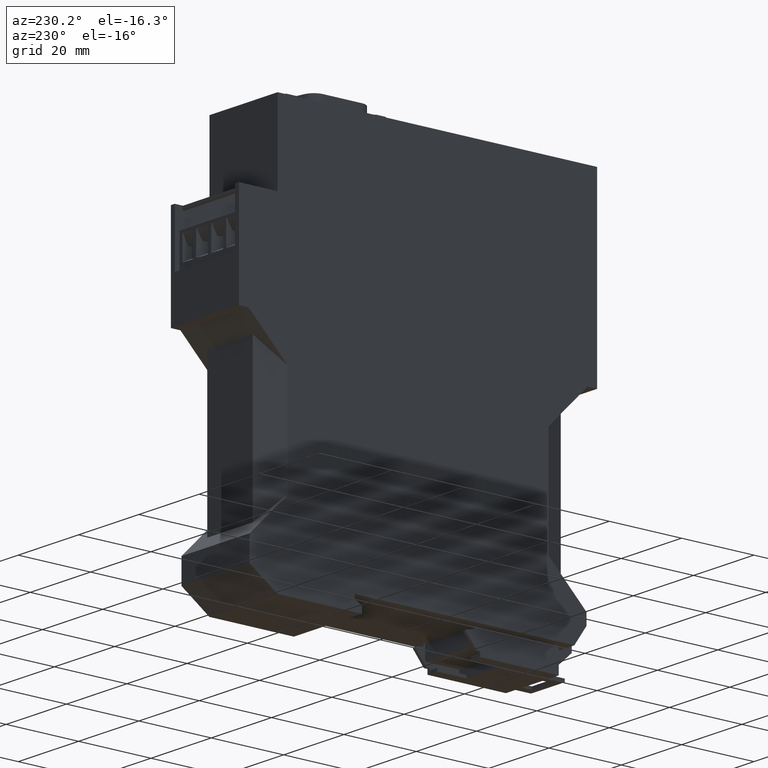
[diagram: clean part render]
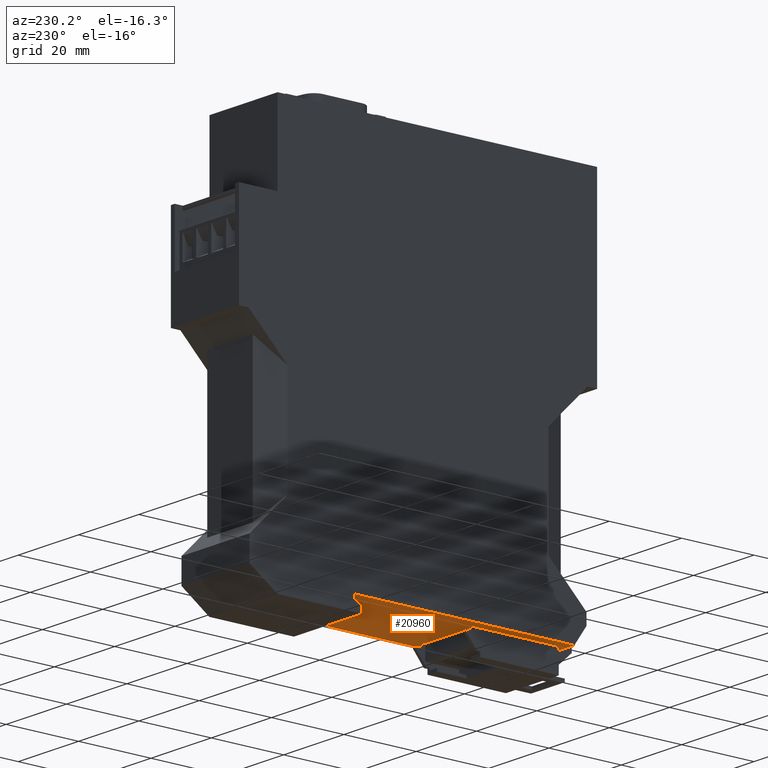
[diagram: same view with one face highlighted and labeled with its STEP entity id]
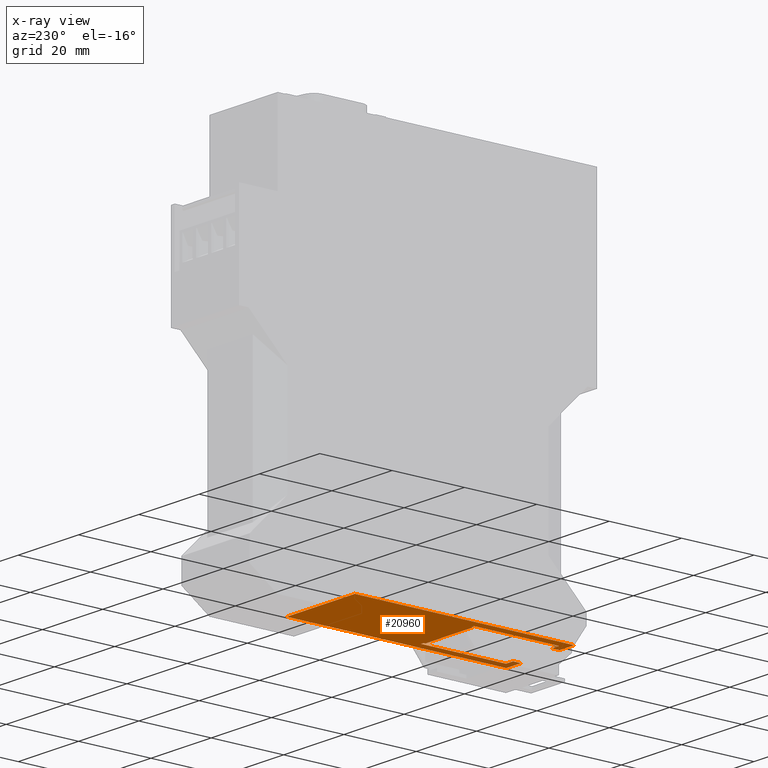
[diagram: x-ray of the same camera — body ghosted, the highlighted face saturated]
A machine part, auxiliary view. The second image highlights one B-rep face of the part: STEP entity #20960.
The next image is the same camera in x-ray: the body ghosted, the highlighted face saturated — about 3% of this face is hidden behind the body in this view.
In plain terms, the highlighted planar face has unit normal (0, 0, 1).
Its self-contained STEP definition (entity closure, byte-faithful):
#60=CARTESIAN_POINT('',(24.,-7.14095449438901E-13,0.));
#70=DIRECTION('',(1.,-1.44E-14,-0.));
#80=VECTOR('',#70,1.);
#90=LINE('',#60,#80);
#100=CARTESIAN_POINT('',(-60.7000000000028,5.04485342389671E-13,0.));
#110=VERTEX_POINT('',#100);
#120=CARTESIAN_POINT('',(-1.76925141204265E-12,-3.69482222595252E-13,0.)
);
#130=VERTEX_POINT('',#120);
#140=EDGE_CURVE('',#110,#130,#90,.T.);
#2010=CARTESIAN_POINT('',(-60.7000000000009,5.04485342389671E-13,22.6));
#2020=VERTEX_POINT('',#2010);
#3630=CARTESIAN_POINT('',(-1.76925141204265E-12,-3.69482222595252E-13,
22.6));
#3640=VERTEX_POINT('',#3630);
#3670=CARTESIAN_POINT('',(24.,-7.14095449438901E-13,22.6));
#3680=DIRECTION('',(1.,-1.44E-14,-0.));
#3690=VECTOR('',#3680,1.);
#3700=LINE('',#3670,#3690);
#3710=EDGE_CURVE('',#2020,#3640,#3700,.T.);
#5530=CARTESIAN_POINT('',(-60.7000000000028,5.04485342389671E-13,4.9));
#5540=VERTEX_POINT('',#5530);
#5570=CARTESIAN_POINT('',(-60.7000000000028,5.04485342389671E-13,0.));
#5580=DIRECTION('',(0.,0.,1.));
#5590=VECTOR('',#5580,1.);
#5600=LINE('',#5570,#5590);
#5610=EDGE_CURVE('',#110,#5540,#5600,.T.);
#6250=CARTESIAN_POINT('',(24.,-7.14095449438901E-13,4.9));
#6260=DIRECTION('',(1.,-1.44E-14,-0.));
#6270=VECTOR('',#6260,1.);
#6280=LINE('',#6250,#6270);
#6290=CARTESIAN_POINT('',(-58.5000000000017,8.59756710269721E-13,4.9));
#6300=VERTEX_POINT('',#6290);
#6310=EDGE_CURVE('',#5540,#6300,#6280,.T.);
#9330=CARTESIAN_POINT('',(-58.5000000000017,4.72510919280467E-13,0.));
#9340=DIRECTION('',(0.,0.,-1.));
#9350=VECTOR('',#9340,1.);
#9360=LINE('',#9330,#9350);
#9370=CARTESIAN_POINT('',(-58.5000000000017,4.72510919280467E-13,
2.54999999999998));
#9380=VERTEX_POINT('',#9370);
#9390=EDGE_CURVE('',#6300,#9380,#9360,.T.);
#10770=CARTESIAN_POINT('',(-35.5000000000031,8.59756710269721E-13,
3.34999999999999));
#10780=VERTEX_POINT('',#10770);
#10810=CARTESIAN_POINT('',(24.,-7.14095449438901E-13,3.34999999999999));
#10820=DIRECTION('',(-1.,1.44E-14,0.));
#10830=VECTOR('',#10820,1.);
#10840=LINE('',#10810,#10830);
#10850=CARTESIAN_POINT('',(-35.0000000000018,1.35003119794419E-13,
3.34999999999999));
#10860=VERTEX_POINT('',#10850);
#10870=EDGE_CURVE('',#10860,#10780,#10840,.T.);
#11270=CARTESIAN_POINT('',(-35.0000000000018,1.35003119794419E-13,0.));
#11280=DIRECTION('',(0.,0.,-1.));
#11290=VECTOR('',#11280,1.);
#11300=LINE('',#11270,#11290);
#11310=CARTESIAN_POINT('',(-35.0000000000018,1.35003119794419E-13,
2.54999999999998));
#11320=VERTEX_POINT('',#11310);
#11330=EDGE_CURVE('',#10860,#11320,#11300,.T.);
#11750=CARTESIAN_POINT('',(24.,-7.14095449438901E-13,2.54999999999998));
#11760=DIRECTION('',(-1.,1.44E-14,0.));
#11770=VECTOR('',#11760,1.);
#11780=LINE('',#11750,#11770);
#11790=EDGE_CURVE('',#11320,#9380,#11780,.T.);
#14100=CARTESIAN_POINT('',(-58.5000000000017,8.59756710269721E-13,17.7))
;
#14110=VERTEX_POINT('',#14100);
#14140=CARTESIAN_POINT('',(-58.5000000000017,4.72510919280467E-13,0.));
#14150=DIRECTION('',(0.,0.,-1.));
#14160=VECTOR('',#14150,1.);
#14170=LINE('',#14140,#14160);
#14180=CARTESIAN_POINT('',(-58.5000000000017,4.72510919280467E-13,20.05)
);
#14190=VERTEX_POINT('',#14180);
#14200=EDGE_CURVE('',#14190,#14110,#14170,.T.);
#14680=CARTESIAN_POINT('',(24.,-7.14095449438901E-13,20.05));
#14690=DIRECTION('',(-1.,1.44E-14,0.));
#14700=VECTOR('',#14690,1.);
#14710=LINE('',#14680,#14700);
#14720=CARTESIAN_POINT('',(-35.0000000000018,1.35003119794419E-13,20.05)
);
#14730=VERTEX_POINT('',#14720);
#14740=EDGE_CURVE('',#14730,#14190,#14710,.T.);
#15760=CARTESIAN_POINT('',(-35.0000000000018,1.35003119794419E-13,0.));
#15770=DIRECTION('',(0.,0.,-1.));
#15780=VECTOR('',#15770,1.);
#15790=LINE('',#15760,#15780);
#15800=CARTESIAN_POINT('',(-35.0000000000018,1.35003119794419E-13,19.25)
);
#15810=VERTEX_POINT('',#15800);
#15820=EDGE_CURVE('',#14730,#15810,#15790,.T.);
#20310=CARTESIAN_POINT('',(-1.76925141204265E-12,-3.69482222595252E-13,
0.));
#20320=DIRECTION('',(0.,0.,1.));
#20330=VECTOR('',#20320,1.);
#20340=LINE('',#20310,#20330);
#20350=EDGE_CURVE('',#130,#3640,#20340,.T.);
#20490=CARTESIAN_POINT('',(-17.5000000000023,-1.17239551400417E-13,11.3)
);
#20500=DIRECTION('',(1.44E-14,1.,0.));
#20510=DIRECTION('',(1.,-1.44E-14,-0.));
#20520=AXIS2_PLACEMENT_3D('',#20490,#20500,#20510);
#20530=PLANE('',#20520);
#20540=ORIENTED_EDGE('',*,*,#140,.T.);
#20550=ORIENTED_EDGE('',*,*,#5610,.F.);
#20560=ORIENTED_EDGE('',*,*,#6310,.F.);
#20570=ORIENTED_EDGE('',*,*,#9390,.F.);
#20580=ORIENTED_EDGE('',*,*,#11790,.T.);
#20590=ORIENTED_EDGE('',*,*,#11330,.T.);
#20600=ORIENTED_EDGE('',*,*,#10870,.F.);
#20610=CARTESIAN_POINT('',(-35.5000000000031,1.4210854715202E-13,0.));
#20620=DIRECTION('',(0.,0.,1.));
#20630=VECTOR('',#20620,1.);
#20640=LINE('',#20610,#20630);
#20650=CARTESIAN_POINT('',(-35.5000000000031,8.59756710269721E-13,19.25)
);
#20660=VERTEX_POINT('',#20650);
#20670=EDGE_CURVE('',#10780,#20660,#20640,.T.);
#20680=ORIENTED_EDGE('',*,*,#20670,.F.);
#20690=CARTESIAN_POINT('',(24.,-7.14095449438901E-13,19.25));
#20700=DIRECTION('',(1.,-1.44E-14,-0.));
#20710=VECTOR('',#20700,1.);
#20720=LINE('',#20690,#20710);
#20730=EDGE_CURVE('',#20660,#15810,#20720,.T.);
#20740=ORIENTED_EDGE('',*,*,#20730,.F.);
#20750=ORIENTED_EDGE('',*,*,#15820,.T.);
#20760=ORIENTED_EDGE('',*,*,#14740,.F.);
#20770=ORIENTED_EDGE('',*,*,#14200,.F.);
#20780=CARTESIAN_POINT('',(24.,-7.14095449438901E-13,17.7));
#20790=DIRECTION('',(-1.,1.44E-14,0.));
#20800=VECTOR('',#20790,1.);
#20810=LINE('',#20780,#20800);
#20820=CARTESIAN_POINT('',(-60.7000000000009,5.04485342389671E-13,17.7))
;
#20830=VERTEX_POINT('',#20820);
#20840=EDGE_CURVE('',#14110,#20830,#20810,.T.);
#20850=ORIENTED_EDGE('',*,*,#20840,.F.);
#20860=CARTESIAN_POINT('',(-60.700000000001,6.46593889541691E-13,0.));
#20870=DIRECTION('',(0.,0.,1.));
#20880=VECTOR('',#20870,1.);
#20890=LINE('',#20860,#20880);
#20900=EDGE_CURVE('',#20830,#2020,#20890,.T.);
#20910=ORIENTED_EDGE('',*,*,#20900,.F.);
#20920=ORIENTED_EDGE('',*,*,#3710,.F.);
#20930=ORIENTED_EDGE('',*,*,#20350,.T.);
#20940=EDGE_LOOP('',(#20930,#20920,#20910,#20850,#20770,#20760,#20750,
#20740,#20680,#20600,#20590,#20580,#20570,#20560,#20550,#20540));
#20950=FACE_OUTER_BOUND('',#20940,.T.);
#20960=ADVANCED_FACE('',(#20950),#20530,.F.);